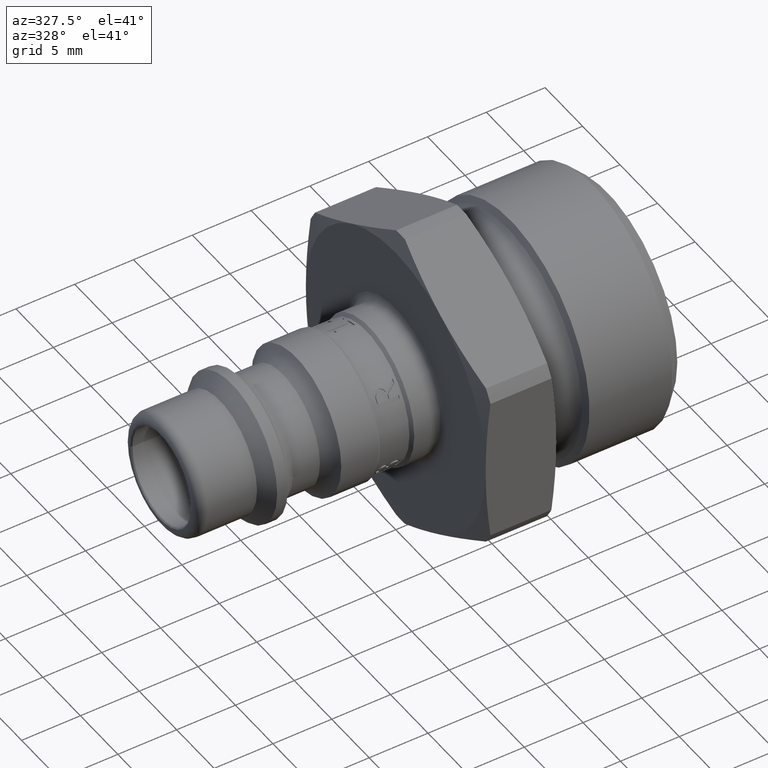
[diagram: clean part render]
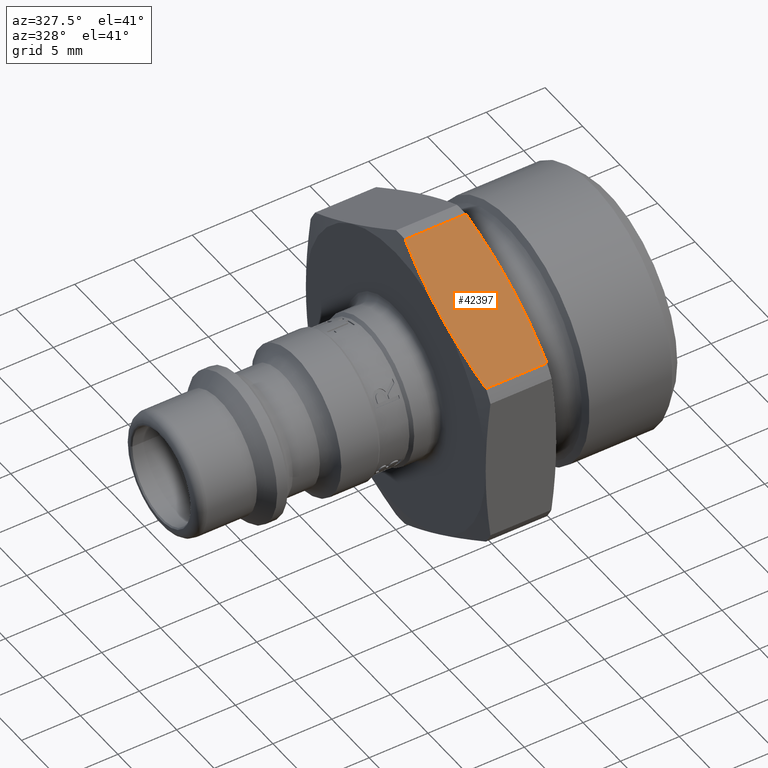
[diagram: same view with one face highlighted and labeled with its STEP entity id]
A machine part, auxiliary view. The second image highlights one B-rep face of the part: STEP entity #42397.
In plain terms, the highlighted planar face has unit normal (0, 0.5, -0.866).
Its self-contained STEP definition (entity closure, byte-faithful):
#42314=CARTESIAN_POINT('',(38.420260652927034,-5.999999999999998,10.392304845413268));
#42315=DIRECTION('',(0.0,0.5,-0.866025403784439));
#42316=DIRECTION('',(0.0,0.866025403784439,0.5));
#42317=AXIS2_PLACEMENT_3D('',#42314,#42315,#42316);
#42318=PLANE('',#42317);
#42319=CARTESIAN_POINT('',(20.408622518457467,-11.403167473806448,7.272784649934485));
#42320=VERTEX_POINT('',#42319);
#42321=CARTESIAN_POINT('',(20.0,-5.999999999999998,10.392304845413268));
#42322=VERTEX_POINT('',#42321);
#42323=CARTESIAN_POINT('',(20.408622518457467,-11.403167473806464,7.272784649934476));
#42324=CARTESIAN_POINT('',(19.999999999999996,-8.540176677205718,8.925733157039337));
#42325=CARTESIAN_POINT('',(20.0,-5.999999999999997,10.392304845413268));
#42333=(BOUNDED_CURVE()B_SPLINE_CURVE(2,(#42323,#42324,#42325),.UNSPECIFIED.,.F.,.U.)B_SPLINE_CURVE_WITH_KNOTS((3,3),(0.0,0.625543956310377),.UNSPECIFIED.)CURVE()GEOMETRIC_REPRESENTATION_ITEM()RATIONAL_B_SPLINE_CURVE((1.0,1.031281565173436,1.0))REPRESENTATION_ITEM(''));
#42334=EDGE_CURVE('',#42320,#42322,#42333,.T.);
#42335=ORIENTED_EDGE('',*,*,#42334,.F.);
#42336=CARTESIAN_POINT('',(25.591377481542537,-11.403167473806448,7.272784649934485));
#42337=VERTEX_POINT('',#42336);
#42338=CARTESIAN_POINT('',(25.591377481542541,-11.403167473806448,7.272784649934485));
#42339=DIRECTION('',(-1.0,0.0,0.0));
#42340=VECTOR('',#42339,5.18275496308507);
#42341=LINE('',#42338,#42340);
#42342=EDGE_CURVE('',#42337,#42320,#42341,.T.);
#42343=ORIENTED_EDGE('',*,*,#42342,.F.);
#42344=CARTESIAN_POINT('',(25.999999999999996,-5.999999999999998,10.392304845413268));
#42345=VERTEX_POINT('',#42344);
#42346=CARTESIAN_POINT('',(26.000000000000007,-5.999999999999997,10.392304845413268));
#42347=CARTESIAN_POINT('',(26.0,-8.540176677205718,8.925733157039337));
#42348=CARTESIAN_POINT('',(25.591377481542537,-11.403167473806464,7.272784649934476));
#42356=(BOUNDED_CURVE()B_SPLINE_CURVE(2,(#42346,#42347,#42348),.UNSPECIFIED.,.F.,.U.)B_SPLINE_CURVE_WITH_KNOTS((3,3),(0.625543956310377,1.251087912620754),.UNSPECIFIED.)CURVE()GEOMETRIC_REPRESENTATION_ITEM()RATIONAL_B_SPLINE_CURVE((1.0,1.031281565173436,1.0))REPRESENTATION_ITEM(''));
#42357=EDGE_CURVE('',#42345,#42337,#42356,.T.);
#42358=ORIENTED_EDGE('',*,*,#42357,.F.);
#42359=CARTESIAN_POINT('',(25.591377481542537,-0.596832526193548,13.511825040892049));
#42360=VERTEX_POINT('',#42359);
#42361=CARTESIAN_POINT('',(25.591377481542537,-0.596832526193533,13.511825040892058));
#42362=CARTESIAN_POINT('',(26.000000000000011,-3.459823322794278,11.858876533787196));
#42363=CARTESIAN_POINT('',(26.000000000000007,-5.999999999999997,10.392304845413268));
#42371=(BOUNDED_CURVE()B_SPLINE_CURVE(2,(#42361,#42362,#42363),.UNSPECIFIED.,.F.,.U.)B_SPLINE_CURVE_WITH_KNOTS((3,3),(0.0,0.625543956310377),.UNSPECIFIED.)CURVE()GEOMETRIC_REPRESENTATION_ITEM()RATIONAL_B_SPLINE_CURVE((1.0,1.031281565173421,1.0))REPRESENTATION_ITEM(''));
#42372=EDGE_CURVE('',#42360,#42345,#42371,.T.);
#42373=ORIENTED_EDGE('',*,*,#42372,.F.);
#42374=CARTESIAN_POINT('',(20.408622518457467,-0.596832526193548,13.511825040892049));
#42375=VERTEX_POINT('',#42374);
#42376=CARTESIAN_POINT('',(20.40862251845747,-0.596832526193548,13.511825040892049));
#42377=DIRECTION('',(1.0,0.0,0.0));
#42378=VECTOR('',#42377,5.18275496308507);
#42379=LINE('',#42376,#42378);
#42380=EDGE_CURVE('',#42375,#42360,#42379,.T.);
#42381=ORIENTED_EDGE('',*,*,#42380,.F.);
#42382=CARTESIAN_POINT('',(20.0,-5.999999999999997,10.392304845413268));
#42383=CARTESIAN_POINT('',(20.000000000000004,-3.459823322794278,11.858876533787196));
#42384=CARTESIAN_POINT('',(20.408622518457467,-0.596832526193533,13.511825040892058));
#42392=(BOUNDED_CURVE()B_SPLINE_CURVE(2,(#42382,#42383,#42384),.UNSPECIFIED.,.F.,.U.)B_SPLINE_CURVE_WITH_KNOTS((3,3),(0.625543956310377,1.251087912620754),.UNSPECIFIED.)CURVE()GEOMETRIC_REPRESENTATION_ITEM()RATIONAL_B_SPLINE_CURVE((1.0,1.031281565173421,1.0))REPRESENTATION_ITEM(''));
#42393=EDGE_CURVE('',#42322,#42375,#42392,.T.);
#42394=ORIENTED_EDGE('',*,*,#42393,.F.);
#42395=EDGE_LOOP('',(#42335,#42343,#42358,#42373,#42381,#42394));
#42396=FACE_OUTER_BOUND('',#42395,.T.);
#42397=ADVANCED_FACE('',(#42396),#42318,.F.);